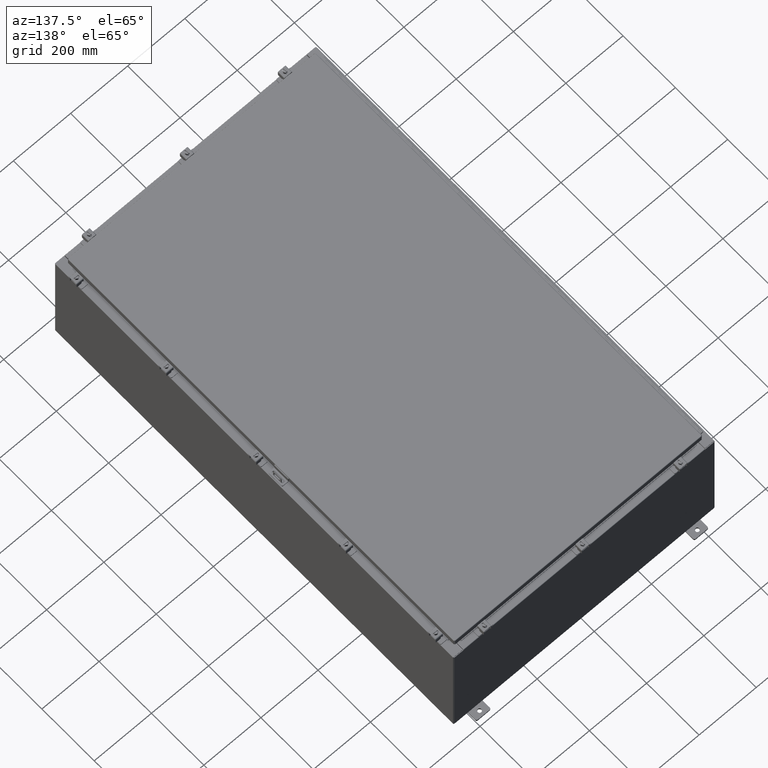
[diagram: clean part render]
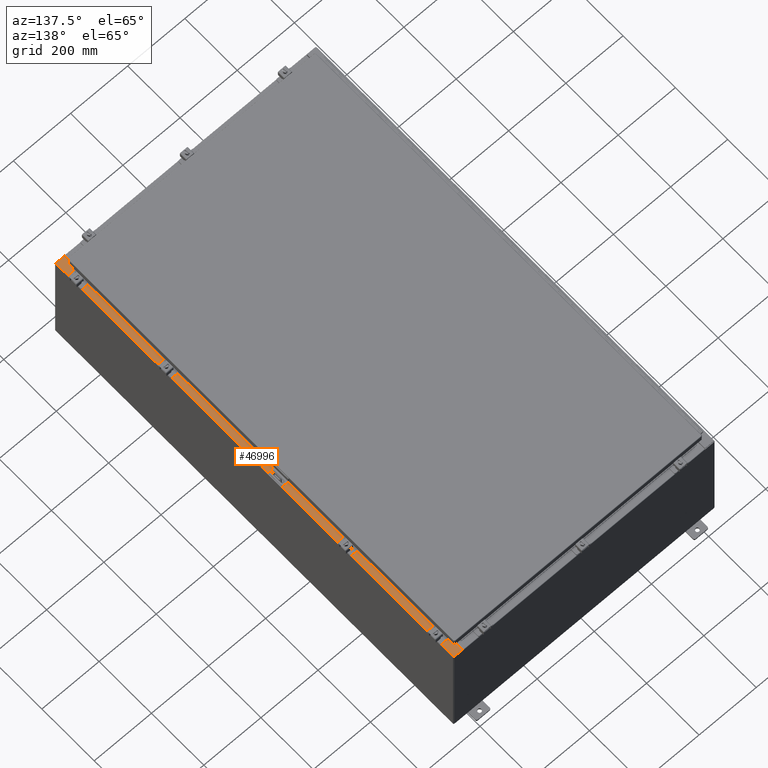
[diagram: same view with one face highlighted and labeled with its STEP entity id]
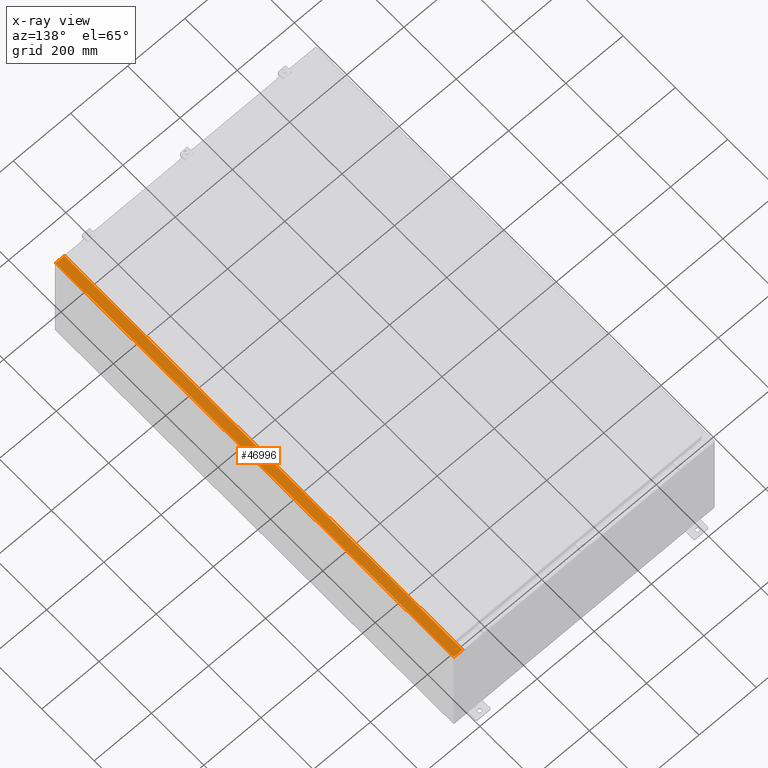
[diagram: x-ray of the same camera — body ghosted, the highlighted face saturated]
A machine part, auxiliary view. The second image highlights one B-rep face of the part: STEP entity #46996.
The next image is the same camera in x-ray: the body ghosted, the highlighted face saturated — about 0% of this face is hidden behind the body in this view.
In plain terms, the highlighted planar face has unit normal (-0, -0, -1).
Its self-contained STEP definition (entity closure, byte-faithful):
#937 = EDGE_CURVE ( 'NONE', #18912, #28343, #28346, .T. ) ;
#1255 = VERTEX_POINT ( 'NONE', #54017 ) ;
#1259 = DIRECTION ( 'NONE',  ( 5.349571789159788500E-015, 3.651556366905946600E-017, 1.000000000000000000 ) ) ;
#1813 = EDGE_LOOP ( 'NONE', ( #14183, #28204, #19321, #50270, #20672, #57747, #22779, #5423, #2681, #25088, #39248, #14844 ) ) ;
#2253 = CARTESIAN_POINT ( 'NONE',  ( 16.75005000000005500, -28.59375000000001100, 15.92530000000000500 ) ) ;
#2681 = ORIENTED_EDGE ( 'NONE', *, *, #35670, .F. ) ;
#2935 = FACE_OUTER_BOUND ( 'NONE', #1813, .T. ) ;
#3359 = AXIS2_PLACEMENT_3D ( 'NONE', #62602, #33482, #4329 ) ;
#3758 = VERTEX_POINT ( 'NONE', #15891 ) ;
#4329 = DIRECTION ( 'NONE',  ( -1.000000000000000000, 0.0000000000000000000, 5.349571789159788500E-015 ) ) ;
#5198 = VECTOR ( 'NONE', #7110, 39.37007874015748100 ) ;
#5423 = ORIENTED_EDGE ( 'NONE', *, *, #41325, .F. ) ;
#5992 = VECTOR ( 'NONE', #36900, 39.37007874015748100 ) ;
#6980 = EDGE_CURVE ( 'NONE', #23427, #53448, #7602, .T. ) ;
#7110 = DIRECTION ( 'NONE',  ( -1.000000000000000000, 0.0000000000000000000, 0.0000000000000000000 ) ) ;
#7166 = CARTESIAN_POINT ( 'NONE',  ( 16.75005000000005500, 28.63109999999996800, 15.92530000000000500 ) ) ;
#7602 = LINE ( 'NONE', #25053, #44904 ) ;
#8054 = DIRECTION ( 'NONE',  ( 1.000000000000000000, 0.0000000000000000000, 0.0000000000000000000 ) ) ;
#9576 = AXIS2_PLACEMENT_3D ( 'NONE', #30363, #1259, #35278 ) ;
#10680 = CARTESIAN_POINT ( 'NONE',  ( 8.545434926991848800E-014, 29.92529999999999300, 15.92530000000009600 ) ) ;
#10871 = VECTOR ( 'NONE', #58010, 39.37007874015748100 ) ;
#11284 = CARTESIAN_POINT ( 'NONE',  ( 16.69970000000005300, 28.63109999999997200, 15.92530000000000500 ) ) ;
#12189 = VECTOR ( 'NONE', #8054, 39.37007874015748100 ) ;
#12234 = CARTESIAN_POINT ( 'NONE',  ( 16.69970000000005300, -29.92530000000001100, 15.92530000000000900 ) ) ;
#12917 = CARTESIAN_POINT ( 'NONE',  ( 16.69970000000005300, -28.63110000000000700, 15.92530000000000500 ) ) ;
#13016 = CARTESIAN_POINT ( 'NONE',  ( 16.69970000000005300, -28.63110000000000700, 15.92530000000000500 ) ) ;
#13706 = LINE ( 'NONE', #12917, #12189 ) ;
#14183 = ORIENTED_EDGE ( 'NONE', *, *, #39856, .F. ) ;
#14844 = ORIENTED_EDGE ( 'NONE', *, *, #16155, .F. ) ;
#15789 = CARTESIAN_POINT ( 'NONE',  ( 16.75005000000005500, -28.61242500000000900, 15.92530000000000500 ) ) ;
#15891 = CARTESIAN_POINT ( 'NONE',  ( 16.75005000000005500, -28.59375000000001100, 15.92530000000000500 ) ) ;
#15992 = CARTESIAN_POINT ( 'NONE',  ( 16.75005000000005500, -28.63110000000000700, 15.92530000000000500 ) ) ;
#16155 = EDGE_CURVE ( 'NONE', #62578, #3758, #38848, .T. ) ;
#16283 = LINE ( 'NONE', #46829, #53618 ) ;
#16998 = VERTEX_POINT ( 'NONE', #47031 ) ;
#18912 = VERTEX_POINT ( 'NONE', #13016 ) ;
#19321 = ORIENTED_EDGE ( 'NONE', *, *, #41230, .T. ) ;
#19687 = LINE ( 'NONE', #20052, #44120 ) ;
#20052 = CARTESIAN_POINT ( 'NONE',  ( 16.69970000000005300, 5.815213060988728800E-016, 15.92530000000000500 ) ) ;
#20672 = ORIENTED_EDGE ( 'NONE', *, *, #51432, .T. ) ;
#20696 = DIRECTION ( 'NONE',  ( 1.000000000000000000, 0.0000000000000000000, 0.0000000000000000000 ) ) ;
#22779 = ORIENTED_EDGE ( 'NONE', *, *, #6980, .F. ) ;
#23427 = VERTEX_POINT ( 'NONE', #7166 ) ;
#23669 = PLANE ( 'NONE',  #3359 ) ;
#24971 = DIRECTION ( 'NONE',  ( 0.0000000000000000000, -1.000000000000000000, 3.651556366905946600E-017 ) ) ;
#25053 = CARTESIAN_POINT ( 'NONE',  ( 16.75005000000005500, 28.63109999999996800, 15.92530000000000500 ) ) ;
#25088 = ORIENTED_EDGE ( 'NONE', *, *, #45121, .F. ) ;
#25344 = LINE ( 'NONE', #53281, #10871 ) ;
#25384 = VERTEX_POINT ( 'NONE', #31428 ) ;
#28204 = ORIENTED_EDGE ( 'NONE', *, *, #937, .T. ) ;
#28343 = VERTEX_POINT ( 'NONE', #12234 ) ;
#28346 = LINE ( 'NONE', #31970, #41352 ) ;
#29095 = VECTOR ( 'NONE', #34953, 39.37007874015748100 ) ;
#29545 = LINE ( 'NONE', #2253, #5198 ) ;
#30363 = CARTESIAN_POINT ( 'NONE',  ( 16.75005000000005500, 28.61242499999997000, 15.92530000000000500 ) ) ;
#30601 = LINE ( 'NONE', #10680, #29095 ) ;
#31428 = CARTESIAN_POINT ( 'NONE',  ( 17.91230000000005200, 29.92529999999999300, 15.92530000000000000 ) ) ;
#31970 = CARTESIAN_POINT ( 'NONE',  ( 16.69970000000005300, 5.815213060988728800E-016, 15.92530000000000500 ) ) ;
#33361 = LINE ( 'NONE', #34450, #57712 ) ;
#33482 = DIRECTION ( 'NONE',  ( -5.349571789159788500E-015, -3.651556366905946600E-017, -1.000000000000000000 ) ) ;
#34450 = CARTESIAN_POINT ( 'NONE',  ( 8.545434926991848800E-014, -29.92530000000001100, 15.92530000000009800 ) ) ;
#34953 = DIRECTION ( 'NONE',  ( -1.000000000000000000, 2.430865342914509000E-063, 5.349571789159789300E-015 ) ) ;
#35278 = DIRECTION ( 'NONE',  ( 1.000000000000000000, 0.0000000000000000000, 0.0000000000000000000 ) ) ;
#35408 = EDGE_CURVE ( 'NONE', #57174, #53448, #19687, .T. ) ;
#35670 = EDGE_CURVE ( 'NONE', #16998, #46369, #41828, .T. ) ;
#36900 = DIRECTION ( 'NONE',  ( 1.000000000000000000, 0.0000000000000000000, 0.0000000000000000000 ) ) ;
#37315 = VERTEX_POINT ( 'NONE', #52396 ) ;
#37847 = EDGE_CURVE ( 'NONE', #25384, #1255, #16283, .T. ) ;
#38848 = CIRCLE ( 'NONE', #52896, 0.01867499999999949400 ) ;
#39248 = ORIENTED_EDGE ( 'NONE', *, *, #46744, .F. ) ;
#39348 = DIRECTION ( 'NONE',  ( -1.000000000000000000, 0.0000000000000000000, 0.0000000000000000000 ) ) ;
#39354 = DIRECTION ( 'NONE',  ( 1.000000000000000000, -2.430865342914509000E-063, -5.349571789159789300E-015 ) ) ;
#39856 = EDGE_CURVE ( 'NONE', #18912, #62578, #13706, .T. ) ;
#41230 = EDGE_CURVE ( 'NONE', #28343, #1255, #33361, .T. ) ;
#41325 = EDGE_CURVE ( 'NONE', #46369, #23427, #54630, .T. ) ;
#41352 = VECTOR ( 'NONE', #56212, 39.37007874015748100 ) ;
#41828 = LINE ( 'NONE', #46482, #5992 ) ;
#44120 = VECTOR ( 'NONE', #24971, 39.37007874015748100 ) ;
#44904 = VECTOR ( 'NONE', #39348, 39.37007874015748100 ) ;
#45121 = EDGE_CURVE ( 'NONE', #37315, #16998, #25344, .T. ) ;
#46369 = VERTEX_POINT ( 'NONE', #46949 ) ;
#46482 = CARTESIAN_POINT ( 'NONE',  ( 16.71270000000005500, 28.59374999999996800, 15.92530000000000500 ) ) ;
#46744 = EDGE_CURVE ( 'NONE', #3758, #37315, #29545, .T. ) ;
#46829 = CARTESIAN_POINT ( 'NONE',  ( 17.91230000000005200, -29.92530000000001100, 15.92530000000000200 ) ) ;
#46949 = CARTESIAN_POINT ( 'NONE',  ( 16.75005000000005500, 28.59374999999996800, 15.92530000000000500 ) ) ;
#46996 = ADVANCED_FACE ( 'NONE', ( #2935 ), #23669, .F. ) ;
#47031 = CARTESIAN_POINT ( 'NONE',  ( 16.71270000000005500, 28.59374999999996800, 15.92530000000000500 ) ) ;
#47895 = DIRECTION ( 'NONE',  ( 3.651556366905947300E-017, -1.000000000000000000, 3.651556366905926900E-017 ) ) ;
#49874 = DIRECTION ( 'NONE',  ( 5.349571789159788500E-015, 3.651556366905946600E-017, 1.000000000000000000 ) ) ;
#50270 = ORIENTED_EDGE ( 'NONE', *, *, #37847, .F. ) ;
#51432 = EDGE_CURVE ( 'NONE', #25384, #57174, #30601, .T. ) ;
#52396 = CARTESIAN_POINT ( 'NONE',  ( 16.71270000000005500, -28.59375000000001100, 15.92530000000000500 ) ) ;
#52896 = AXIS2_PLACEMENT_3D ( 'NONE', #15789, #49874, #20696 ) ;
#53281 = CARTESIAN_POINT ( 'NONE',  ( 16.71270000000005500, -28.59375000000000400, 15.92530000000000500 ) ) ;
#53448 = VERTEX_POINT ( 'NONE', #11284 ) ;
#53618 = VECTOR ( 'NONE', #47895, 39.37007874015748100 ) ;
#54017 = CARTESIAN_POINT ( 'NONE',  ( 17.91230000000005200, -29.92530000000001100, 15.92530000000000200 ) ) ;
#54630 = CIRCLE ( 'NONE', #9576, 0.01867499999999949400 ) ;
#56212 = DIRECTION ( 'NONE',  ( 0.0000000000000000000, -1.000000000000000000, 3.651556366905946600E-017 ) ) ;
#57174 = VERTEX_POINT ( 'NONE', #60144 ) ;
#57712 = VECTOR ( 'NONE', #39354, 39.37007874015748100 ) ;
#57747 = ORIENTED_EDGE ( 'NONE', *, *, #35408, .T. ) ;
#58010 = DIRECTION ( 'NONE',  ( -0.0000000000000000000, 1.000000000000000000, -0.0000000000000000000 ) ) ;
#60144 = CARTESIAN_POINT ( 'NONE',  ( 16.69970000000005300, 29.92529999999999300, 15.92530000000000500 ) ) ;
#62578 = VERTEX_POINT ( 'NONE', #15992 ) ;
#62602 = CARTESIAN_POINT ( 'NONE',  ( 8.545434926991848800E-014, 5.815213060988761300E-016, 15.92530000000009600 ) ) ;